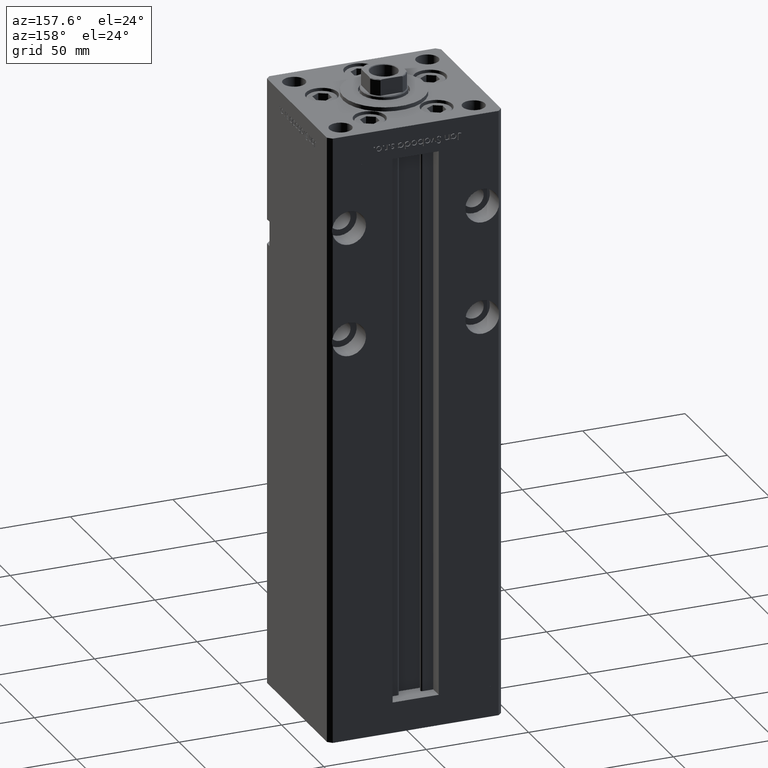
[diagram: clean part render]
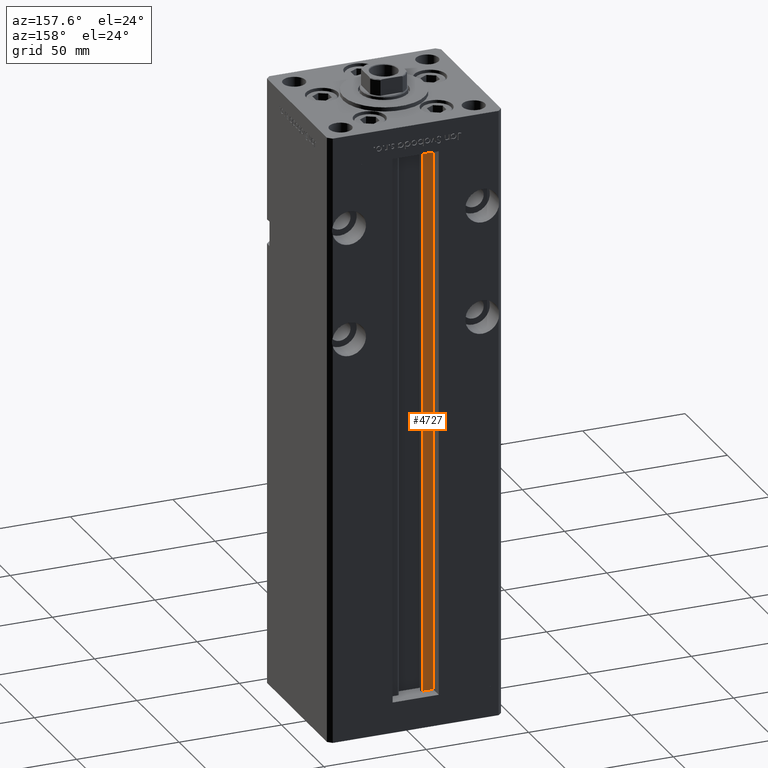
[diagram: same view with one face highlighted and labeled with its STEP entity id]
A machine part, auxiliary view. The second image highlights one B-rep face of the part: STEP entity #4727.
In plain terms, the highlighted planar face has unit normal (0, -1, 0).
Its self-contained STEP definition (entity closure, byte-faithful):
#3988 = EDGE_CURVE ( 'NONE', #12484, #30379, #4611, .T. ) ;
#4611 = LINE ( 'NONE', #25056, #18410 ) ;
#4727 = ADVANCED_FACE ( 'NONE', ( #29917 ), #21282, .F. ) ;
#4758 = CARTESIAN_POINT ( 'NONE',  ( -11.24999999999999822, 31.00000000000000000, 0.000000000000000000 ) ) ;
#5856 = VERTEX_POINT ( 'NONE', #29664 ) ;
#7617 = DIRECTION ( 'NONE',  ( -1.000000000000000000, 0.000000000000000000, 0.000000000000000000 ) ) ;
#8267 = DIRECTION ( 'NONE',  ( -0.000000000000000000, -0.000000000000000000, 1.000000000000000000 ) ) ;
#8400 = CARTESIAN_POINT ( 'NONE',  ( 0.000000000000000000, 31.00000000000000000, 268.5000000000000000 ) ) ;
#8602 = EDGE_CURVE ( 'NONE', #15309, #5856, #16749, .T. ) ;
#8720 = CARTESIAN_POINT ( 'NONE',  ( -6.183333333333997928, 31.00000000000000000, 268.5000000000000000 ) ) ;
#12484 = VERTEX_POINT ( 'NONE', #26503 ) ;
#14075 = CARTESIAN_POINT ( 'NONE',  ( -6.183333333333997928, 31.00000000000000000, 0.000000000000000000 ) ) ;
#15309 = VERTEX_POINT ( 'NONE', #8720 ) ;
#16219 = VECTOR ( 'NONE', #8267, 1000.000000000000000 ) ;
#16749 = LINE ( 'NONE', #8400, #37990 ) ;
#17266 = DIRECTION ( 'NONE',  ( 0.000000000000000000, 0.000000000000000000, -1.000000000000000000 ) ) ;
#17408 = EDGE_CURVE ( 'NONE', #12484, #5856, #24946, .T. ) ;
#18410 = VECTOR ( 'NONE', #37411, 1000.000000000000000 ) ;
#21282 = PLANE ( 'NONE',  #21913 ) ;
#21545 = EDGE_CURVE ( 'NONE', #30379, #15309, #44118, .T. ) ;
#21913 = AXIS2_PLACEMENT_3D ( 'NONE', #22084, #37691, #17266 ) ;
#22084 = CARTESIAN_POINT ( 'NONE',  ( -6.183333333333997928, 31.00000000000000000, 0.000000000000000000 ) ) ;
#23691 = DIRECTION ( 'NONE',  ( -0.000000000000000000, -0.000000000000000000, 1.000000000000000000 ) ) ;
#24931 = ORIENTED_EDGE ( 'NONE', *, *, #17408, .T. ) ;
#24946 = LINE ( 'NONE', #4758, #16219 ) ;
#25056 = CARTESIAN_POINT ( 'NONE',  ( -6.183333333333997928, 31.00000000000000000, 0.000000000000000000 ) ) ;
#26503 = CARTESIAN_POINT ( 'NONE',  ( -11.24999999999999822, 31.00000000000000000, 0.000000000000000000 ) ) ;
#29664 = CARTESIAN_POINT ( 'NONE',  ( -11.24999999999999822, 31.00000000000000000, 268.5000000000000000 ) ) ;
#29917 = FACE_OUTER_BOUND ( 'NONE', #40444, .T. ) ;
#30379 = VERTEX_POINT ( 'NONE', #37982 ) ;
#32675 = VECTOR ( 'NONE', #23691, 1000.000000000000000 ) ;
#33309 = ORIENTED_EDGE ( 'NONE', *, *, #3988, .F. ) ;
#37411 = DIRECTION ( 'NONE',  ( 1.000000000000000000, -0.000000000000000000, -0.000000000000000000 ) ) ;
#37503 = ORIENTED_EDGE ( 'NONE', *, *, #21545, .F. ) ;
#37691 = DIRECTION ( 'NONE',  ( 0.000000000000000000, -1.000000000000000000, -0.000000000000000000 ) ) ;
#37982 = CARTESIAN_POINT ( 'NONE',  ( -6.183333333333997928, 31.00000000000000000, 0.000000000000000000 ) ) ;
#37990 = VECTOR ( 'NONE', #7617, 1000.000000000000000 ) ;
#40444 = EDGE_LOOP ( 'NONE', ( #37503, #33309, #24931, #44216 ) ) ;
#44118 = LINE ( 'NONE', #14075, #32675 ) ;
#44216 = ORIENTED_EDGE ( 'NONE', *, *, #8602, .F. ) ;